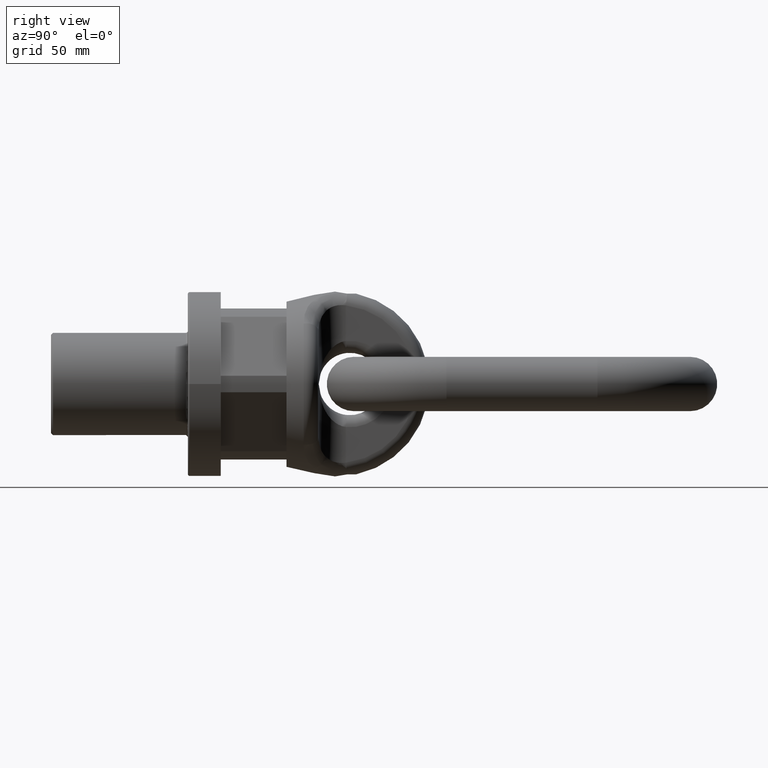
[diagram: clean part render]
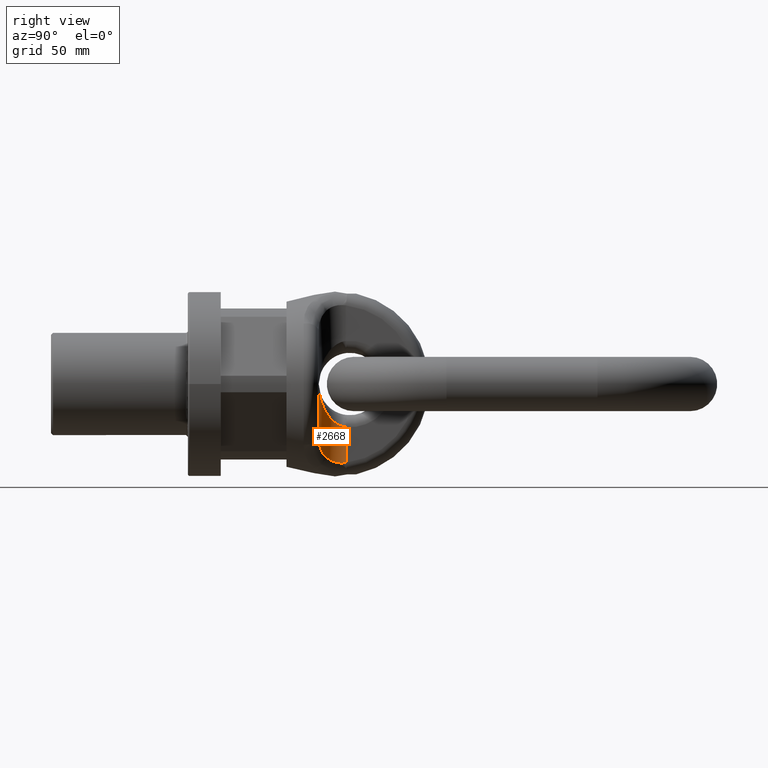
[diagram: same view with one face highlighted and labeled with its STEP entity id]
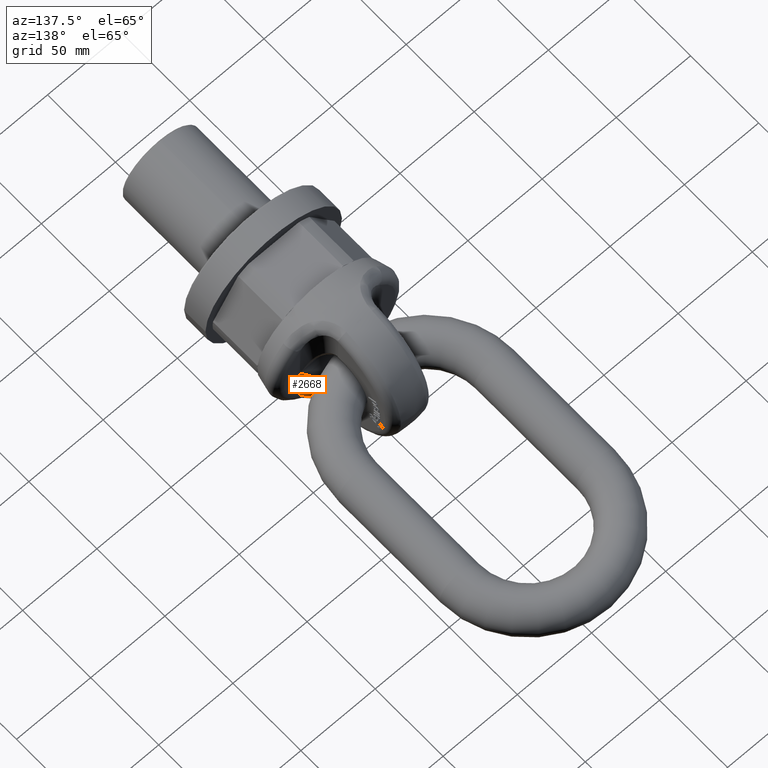
[diagram: same view with one face highlighted and labeled with its STEP entity id]
A machine part, right view. The second image highlights one B-rep face of the part: STEP entity #2668.
A second angle (auxiliary view) of the same face is appended — the face is thin or edge-on in the first view.
In plain terms, the highlighted cylindrical surface (edge-blend (fillet) strip) has radius 13.5 mm, axis along (0, 0, -1).
Its self-contained STEP definition (entity closure, byte-faithful):
#354=B_SPLINE_CURVE_WITH_KNOTS('',3,(#6994,#6995,#6996,#6997,#6998,#6999,
#7000,#7001),.UNSPECIFIED.,.F.,.F.,(4,2,2,4),(0.,0.25,0.5,1.),
 .UNSPECIFIED.);
#355=B_SPLINE_CURVE_WITH_KNOTS('',3,(#7004,#7005,#7006,#7007,#7008,#7009),
 .UNSPECIFIED.,.F.,.F.,(4,2,4),(0.,0.5,1.),.UNSPECIFIED.);
#356=B_SPLINE_CURVE_WITH_KNOTS('',3,(#7011,#7012,#7013,#7014,#7015,#7016),
 .UNSPECIFIED.,.F.,.F.,(4,2,4),(0.,0.5,1.),.UNSPECIFIED.);
#1821=FACE_OUTER_BOUND('',#3103,.T.);
#2029=CYLINDRICAL_SURFACE('',#5651,13.5);
#2072=LINE('',#6793,#2328);
#2100=LINE('',#7002,#2356);
#2328=VECTOR('',#5930,1.);
#2356=VECTOR('',#5964,1.);
#2668=ADVANCED_FACE('',(#1821),#2029,.F.);
#3103=EDGE_LOOP('',(#3516,#3517,#3518,#3519,#3520));
#3516=ORIENTED_EDGE('',*,*,#5010,.F.);
#3517=ORIENTED_EDGE('',*,*,#5062,.T.);
#3518=ORIENTED_EDGE('',*,*,#5063,.F.);
#3519=ORIENTED_EDGE('',*,*,#5064,.T.);
#3520=ORIENTED_EDGE('',*,*,#5065,.T.);
#4600=VERTEX_POINT('',#6792);
#4601=VERTEX_POINT('',#6794);
#4648=VERTEX_POINT('',#6970);
#4651=VERTEX_POINT('',#7003);
#4652=VERTEX_POINT('',#7010);
#5010=EDGE_CURVE('',#4600,#4601,#2072,.T.);
#5062=EDGE_CURVE('',#4600,#4648,#354,.T.);
#5063=EDGE_CURVE('',#4651,#4648,#2100,.T.);
#5064=EDGE_CURVE('',#4651,#4652,#355,.T.);
#5065=EDGE_CURVE('',#4652,#4601,#356,.T.);
#5651=AXIS2_PLACEMENT_3D('',#7017,#5965,#5966);
#5930=DIRECTION('',(0.,0.,-1.));
#5964=DIRECTION('',(0.,0.,1.));
#5965=DIRECTION('',(0.,0.,-1.));
#5966=DIRECTION('',(-1.,0.,0.));
#6792=CARTESIAN_POINT('',(13.5,78.5,-21.4067746286076));
#6793=CARTESIAN_POINT('',(13.5,78.5,-43.0435825646519));
#6794=CARTESIAN_POINT('',(13.5,78.5,-39.0320381225475));
#6970=CARTESIAN_POINT('',(27.,65.,0.));
#6994=CARTESIAN_POINT('',(13.5,78.5,-21.4067746286077));
#6995=CARTESIAN_POINT('',(13.5,75.9084166045796,-21.0570350435674));
#6996=CARTESIAN_POINT('',(14.2435577247874,73.6415502057427,-19.7491593798936));
#6997=CARTESIAN_POINT('',(16.2246410338136,70.1200839458872,-16.5050711504721));
#6998=CARTESIAN_POINT('',(17.4413749037773,68.8276991378924,-14.6031351705093));
#6999=CARTESIAN_POINT('',(21.31741609164,65.825572560723,-8.61195186972769));
#7000=CARTESIAN_POINT('',(24.1730954971867,65.,-4.287596541272));
#7001=CARTESIAN_POINT('',(27.,65.,2.85611304025402E-15));
#7002=CARTESIAN_POINT('',(27.,65.,43.0435825646519));
#7003=CARTESIAN_POINT('',(27.,65.,-25.9805035838614));
#7004=CARTESIAN_POINT('',(27.,65.,-25.9805035838614));
#7005=CARTESIAN_POINT('',(25.6491196568191,65.,-28.0083446999505));
#7006=CARTESIAN_POINT('',(24.1569020228082,65.1949215700465,-29.8918396643625));
#7007=CARTESIAN_POINT('',(20.9636717975164,66.3069257376564,-33.3767440781786));
#7008=CARTESIAN_POINT('',(19.3004058410429,67.2248777584717,-34.9211491660667));
#7009=CARTESIAN_POINT('',(17.8064581196519,68.6142128439721,-36.278251056184));
#7010=CARTESIAN_POINT('',(17.8064581196519,68.6142128439721,-36.278251056184));
#7011=CARTESIAN_POINT('',(17.8064581196519,68.6142128439721,-36.278251056184));
#7012=CARTESIAN_POINT('',(16.6172015374842,69.7201925724525,-37.3585715602988));
#7013=CARTESIAN_POINT('',(15.5199806035109,71.1516881037756,-38.2324980088469));
#7014=CARTESIAN_POINT('',(13.9484439917095,74.5699339915958,-39.2411335612942));
#7015=CARTESIAN_POINT('',(13.5,76.553861986935,-39.3561282211789));
#7016=CARTESIAN_POINT('',(13.5,78.5,-39.0320381225475));
#7017=CARTESIAN_POINT('',(27.,78.5,50.6));